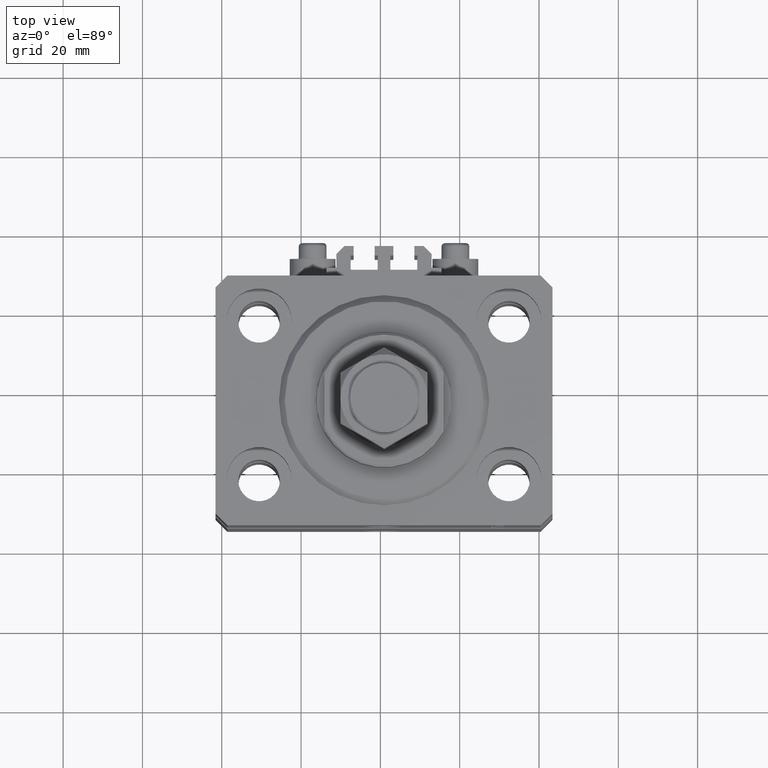
[diagram: clean part render]
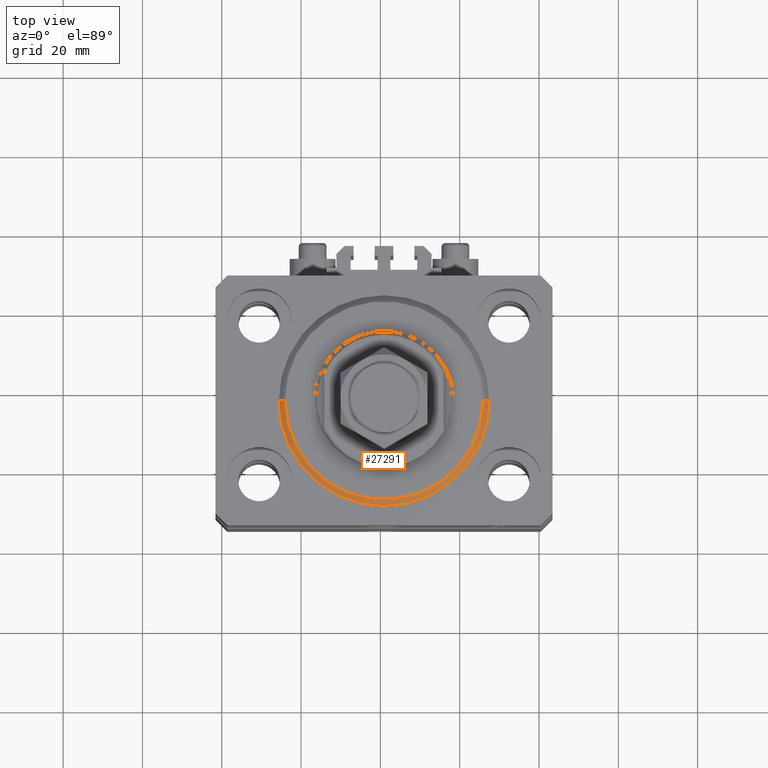
[diagram: same view with one face highlighted and labeled with its STEP entity id]
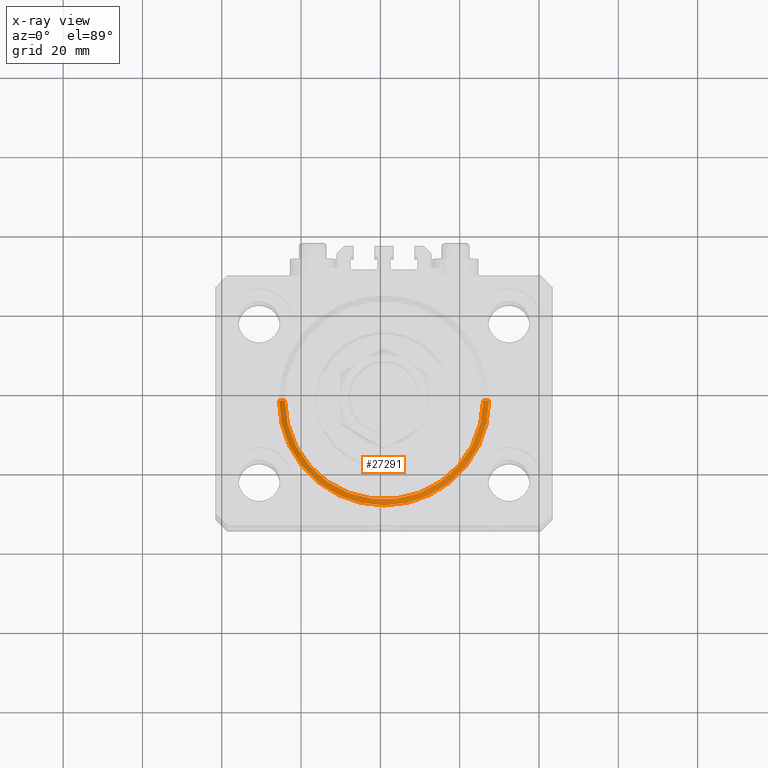
[diagram: x-ray of the same camera — body ghosted, the highlighted face saturated]
A machine part, top view. The second image highlights one B-rep face of the part: STEP entity #27291.
The next image is the same camera in x-ray: the body ghosted, the highlighted face saturated — about 0% of this face is hidden behind the body in this view.
In plain terms, the highlighted conical surface has half-angle 45 deg.
Its self-contained STEP definition (entity closure, byte-faithful):
#1225 = DIRECTION ( 'NONE',  ( 1.000000000000000000, 0.000000000000000000, 0.000000000000000000 ) ) ;
#6408 = DIRECTION ( 'NONE',  ( 1.000000000000000000, 0.000000000000000000, 0.000000000000000000 ) ) ;
#7311 = ORIENTED_EDGE ( 'NONE', *, *, #34717, .F. ) ;
#13880 = FACE_OUTER_BOUND ( 'NONE', #29543, .T. ) ;
#14860 = CARTESIAN_POINT ( 'NONE',  ( 24.99999999999998224, 0.000000000000000000, 0.000000000000000000 ) ) ;
#15239 = VERTEX_POINT ( 'NONE', #33476 ) ;
#15970 = DIRECTION ( 'NONE',  ( 0.7071067811865483499, 0.000000000000000000, 0.7071067811865466846 ) ) ;
#16678 = CARTESIAN_POINT ( 'NONE',  ( 0.000000000000000000, 0.000000000000000000, 0.000000000000000000 ) ) ;
#17422 = DIRECTION ( 'NONE',  ( -0.000000000000000000, -0.000000000000000000, -1.000000000000000000 ) ) ;
#18075 = CARTESIAN_POINT ( 'NONE',  ( 0.000000000000000000, 0.000000000000000000, 1.500000000000018652 ) ) ;
#18639 = VECTOR ( 'NONE', #37784, 1000.000000000000000 ) ;
#21494 = CIRCLE ( 'NONE', #28634, 24.99999999999998224 ) ;
#21523 = VECTOR ( 'NONE', #15970, 1000.000000000000000 ) ;
#22348 = LINE ( 'NONE', #25598, #18639 ) ;
#23430 = CARTESIAN_POINT ( 'NONE',  ( 26.50000000000000355, 0.000000000000000000, 1.500000000000018652 ) ) ;
#25598 = CARTESIAN_POINT ( 'NONE',  ( -26.50000000000000355, 3.245314017740486554E-15, 1.500000000000018652 ) ) ;
#26632 = AXIS2_PLACEMENT_3D ( 'NONE', #29058, #44248, #6408 ) ;
#26655 = EDGE_CURVE ( 'NONE', #35820, #34678, #22348, .T. ) ;
#27291 = ADVANCED_FACE ( 'NONE', ( #13880 ), #45709, .T. ) ;
#27449 = VERTEX_POINT ( 'NONE', #14860 ) ;
#28604 = ORIENTED_EDGE ( 'NONE', *, *, #43882, .T. ) ;
#28634 = AXIS2_PLACEMENT_3D ( 'NONE', #16678, #17422, #1225 ) ;
#29058 = CARTESIAN_POINT ( 'NONE',  ( 0.000000000000000000, 0.000000000000000000, 1.500000000000018652 ) ) ;
#29543 = EDGE_LOOP ( 'NONE', ( #44546, #44721, #28604, #7311 ) ) ;
#32338 = AXIS2_PLACEMENT_3D ( 'NONE', #18075, #34237, #40974 ) ;
#33234 = CIRCLE ( 'NONE', #32338, 26.50000000000000355 ) ;
#33476 = CARTESIAN_POINT ( 'NONE',  ( 26.50000000000000355, 3.245314017740486554E-15, 1.500000000000018652 ) ) ;
#34237 = DIRECTION ( 'NONE',  ( -0.000000000000000000, -0.000000000000000000, 1.000000000000000000 ) ) ;
#34678 = VERTEX_POINT ( 'NONE', #45192 ) ;
#34717 = EDGE_CURVE ( 'NONE', #34678, #15239, #33234, .T. ) ;
#35595 = CARTESIAN_POINT ( 'NONE',  ( -24.99999999999998224, 3.153465507804433615E-15, 0.000000000000000000 ) ) ;
#35820 = VERTEX_POINT ( 'NONE', #35595 ) ;
#37784 = DIRECTION ( 'NONE',  ( -0.7071067811865483499, 8.659560562354942719E-17, 0.7071067811865466846 ) ) ;
#38144 = LINE ( 'NONE', #23430, #21523 ) ;
#40974 = DIRECTION ( 'NONE',  ( 1.000000000000000000, 0.000000000000000000, 0.000000000000000000 ) ) ;
#42960 = EDGE_CURVE ( 'NONE', #27449, #35820, #21494, .T. ) ;
#43882 = EDGE_CURVE ( 'NONE', #27449, #15239, #38144, .T. ) ;
#44248 = DIRECTION ( 'NONE',  ( -0.000000000000000000, -0.000000000000000000, 1.000000000000000000 ) ) ;
#44546 = ORIENTED_EDGE ( 'NONE', *, *, #26655, .F. ) ;
#44721 = ORIENTED_EDGE ( 'NONE', *, *, #42960, .F. ) ;
#45192 = CARTESIAN_POINT ( 'NONE',  ( -26.50000000000000355, 0.000000000000000000, 1.500000000000018652 ) ) ;
#45709 = CONICAL_SURFACE ( 'NONE', #26632, 26.50000000000000355, 0.7853981633974495002 ) ;